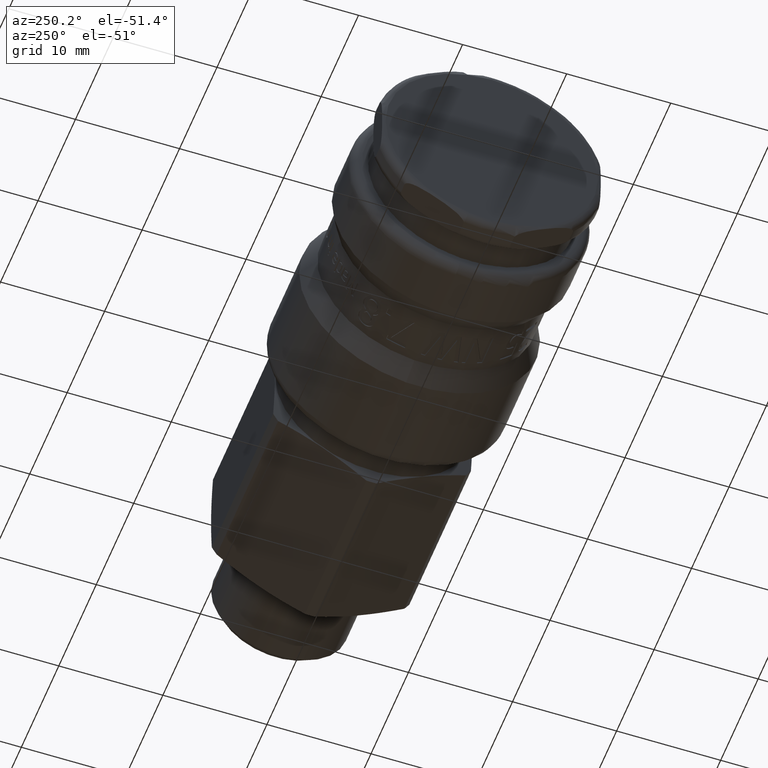
[diagram: clean part render]
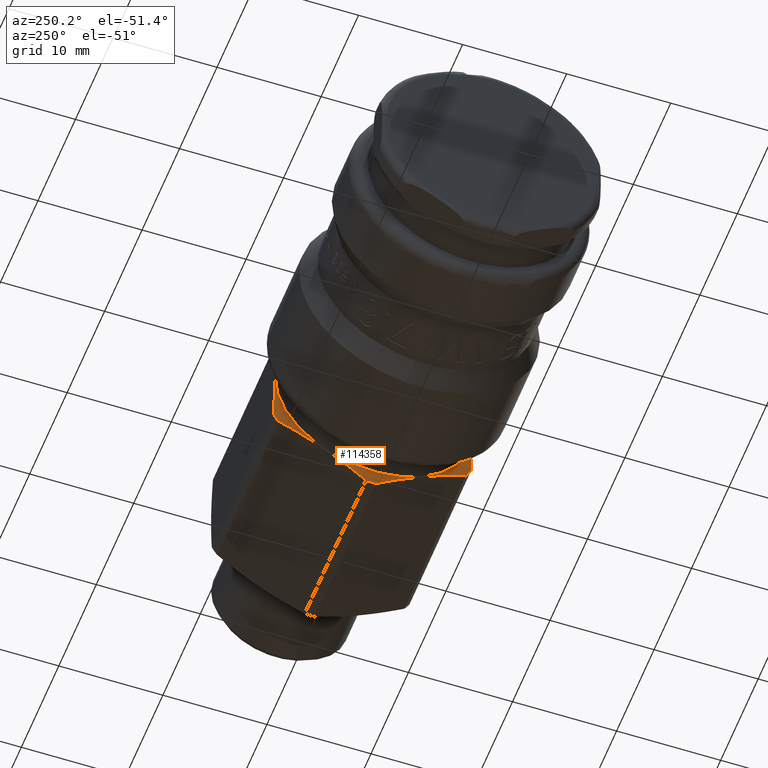
[diagram: same view with one face highlighted and labeled with its STEP entity id]
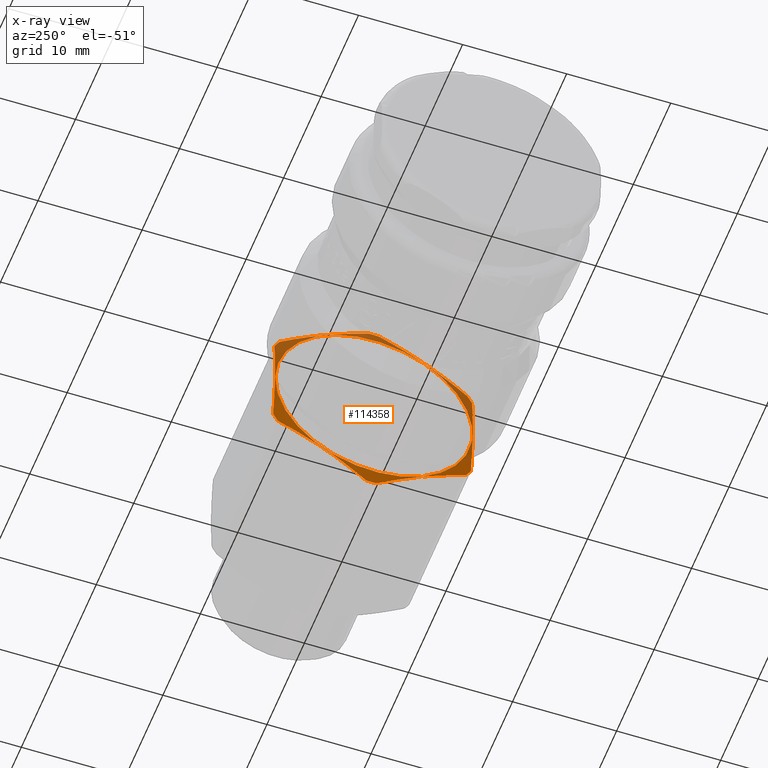
[diagram: x-ray of the same camera — body ghosted, the highlighted face saturated]
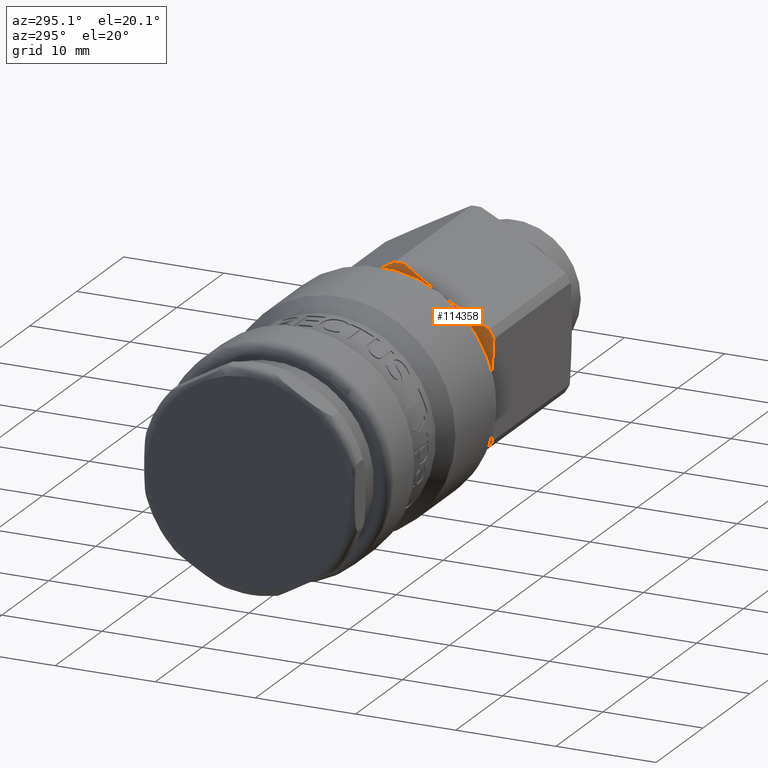
[diagram: same view with one face highlighted and labeled with its STEP entity id]
A machine part, auxiliary view. The second image highlights one B-rep face of the part: STEP entity #114358.
The next image is the same camera in x-ray: the body ghosted, the highlighted face saturated — about 40% of this face is hidden behind the body in this view.
A second angle (auxiliary view) of the same face is appended — the face is thin or edge-on in the first view.
In plain terms, the highlighted conical surface has half-angle 75 deg.
Its self-contained STEP definition (entity closure, byte-faithful):
#113698=CARTESIAN_POINT('',(31.450000000000003,9.474342880840897,0.111588423500987));
#113699=VERTEX_POINT('',#113698);
#113700=CARTESIAN_POINT('',(31.450000000000003,0.0,0.0));
#113701=DIRECTION('',(-1.0,0.0,0.0));
#113702=DIRECTION('',(0.0,0.999930647054448,0.011777142322004));
#113703=AXIS2_PLACEMENT_3D('',#113700,#113701,#113702);
#113704=CIRCLE('',#113703,9.475000000000001);
#113705=EDGE_CURVE('',#113699,#113699,#113704,.T.);
#113717=CARTESIAN_POINT('',(31.778237760728132,0.360279897023494,10.693932784331530));
#113718=VERTEX_POINT('',#113717);
#113725=CARTESIAN_POINT('',(31.778237760728132,-0.612050422196620,10.682480717543509));
#113726=VERTEX_POINT('',#113725);
#113727=CARTESIAN_POINT('',(31.778237760728132,0.0,0.0));
#113728=DIRECTION('',(-1.000000000000000,0.0,0.0));
#113729=DIRECTION('',(0.0,0.999930647054448,0.011777142322004));
#113730=AXIS2_PLACEMENT_3D('',#113727,#113728,#113729);
#113731=CIRCLE('',#113730,10.699999999999999);
#113732=EDGE_CURVE('',#113726,#113718,#113731,.T.);
#113881=CARTESIAN_POINT('',(31.778237760728132,9.557324887928406,-4.811189144752498));
#113882=VERTEX_POINT('',#113881);
#113889=CARTESIAN_POINT('',(31.778237760728132,9.441357406106111,5.034954848870572));
#113890=VERTEX_POINT('',#113889);
#113891=CARTESIAN_POINT('',(31.778237760728132,9.441357406106111,5.034954848870612));
#113892=CARTESIAN_POINT('',(31.171220150958924,9.499341147017258,0.111882852059037));
#113893=CARTESIAN_POINT('',(31.778237760728132,9.557324887928406,-4.811189144752538));
#113901=(BOUNDED_CURVE()B_SPLINE_CURVE(2,(#113891,#113892,#113893),.UNSPECIFIED.,.F.,.U.)B_SPLINE_CURVE_WITH_KNOTS((3,3),(0.0,0.986780367628047),.UNSPECIFIED.)CURVE()GEOMETRIC_REPRESENTATION_ITEM()RATIONAL_B_SPLINE_CURVE((1.0,1.126315789473679,1.0))REPRESENTATION_ITEM(''));
#113902=EDGE_CURVE('',#113890,#113882,#113901,.T.);
#114135=CARTESIAN_POINT('',(31.778237760728132,-9.081077509082613,5.658977935460955));
#114136=VERTEX_POINT('',#114135);
#114143=CARTESIAN_POINT('',(31.778237760728132,-9.557324887928406,4.811189144752496));
#114144=VERTEX_POINT('',#114143);
#114145=CARTESIAN_POINT('',(31.778237760728132,0.0,0.0));
#114146=DIRECTION('',(-1.000000000000000,0.0,0.0));
#114147=DIRECTION('',(0.0,0.999930647054448,0.011777142322004));
#114148=AXIS2_PLACEMENT_3D('',#114145,#114146,#114147);
#114149=CIRCLE('',#114148,10.699999999999999);
#114150=EDGE_CURVE('',#114144,#114136,#114149,.T.);
#114167=CARTESIAN_POINT('',(31.778237760728132,-9.441357406106111,-5.034954848870573));
#114168=VERTEX_POINT('',#114167);
#114175=CARTESIAN_POINT('',(31.778237760728132,-8.945274465731790,-5.871291572791017));
#114176=VERTEX_POINT('',#114175);
#114177=CARTESIAN_POINT('',(31.778237760728132,0.0,0.0));
#114178=DIRECTION('',(-1.000000000000000,0.0,0.0));
#114179=DIRECTION('',(0.0,0.999930647054448,0.011777142322004));
#114180=AXIS2_PLACEMENT_3D('',#114177,#114178,#114179);
#114181=CIRCLE('',#114180,10.699999999999999);
#114182=EDGE_CURVE('',#114176,#114168,#114181,.T.);
#114199=CARTESIAN_POINT('',(31.778237760728132,-0.360279897023499,-10.693932784331530));
#114200=VERTEX_POINT('',#114199);
#114207=CARTESIAN_POINT('',(31.778237760728132,0.612050422196615,-10.682480717543513));
#114208=VERTEX_POINT('',#114207);
#114209=CARTESIAN_POINT('',(31.778237760728132,0.0,0.0));
#114210=DIRECTION('',(-1.000000000000000,0.0,0.0));
#114211=DIRECTION('',(0.0,0.999930647054448,0.011777142322004));
#114212=AXIS2_PLACEMENT_3D('',#114209,#114210,#114211);
#114213=CIRCLE('',#114212,10.699999999999999);
#114214=EDGE_CURVE('',#114208,#114200,#114213,.T.);
#114231=CARTESIAN_POINT('',(31.778237760728132,9.081077509082610,-5.658977935460959));
#114232=VERTEX_POINT('',#114231);
#114239=CARTESIAN_POINT('',(31.778237760728132,0.0,0.0));
#114240=DIRECTION('',(-1.000000000000000,0.0,0.0));
#114241=DIRECTION('',(0.0,0.999930647054448,0.011777142322004));
#114242=AXIS2_PLACEMENT_3D('',#114239,#114240,#114241);
#114243=CIRCLE('',#114242,10.699999999999999);
#114244=EDGE_CURVE('',#113882,#114232,#114243,.T.);
#114256=CARTESIAN_POINT('',(31.778237760728132,8.945274465731787,5.871291572791026));
#114257=VERTEX_POINT('',#114256);
#114266=CARTESIAN_POINT('',(31.778237760728132,0.0,0.0));
#114267=DIRECTION('',(-1.000000000000000,0.0,0.0));
#114268=DIRECTION('',(0.0,0.999930647054448,0.011777142322004));
#114269=AXIS2_PLACEMENT_3D('',#114266,#114267,#114268);
#114270=CIRCLE('',#114269,10.699999999999999);
#114271=EDGE_CURVE('',#114257,#113890,#114270,.T.);
#114276=CARTESIAN_POINT('',(31.614118880364067,0.0,0.0));
#114277=DIRECTION('',(1.0,0.0,0.0));
#114278=DIRECTION('',(0.0,0.999930647054448,0.011777142322004));
#114279=AXIS2_PLACEMENT_3D('',#114276,#114277,#114278);
#114280=CONICAL_SURFACE('',#114279,10.087500000000000,74.999999999999915);
#114281=ORIENTED_EDGE('',*,*,#113705,.F.);
#114282=EDGE_LOOP('',(#114281));
#114283=FACE_OUTER_BOUND('',#114282,.T.);
#114284=CARTESIAN_POINT('',(31.778237760728132,0.360279897023457,10.693932784331553));
#114285=CARTESIAN_POINT('',(31.171220150958924,4.652777181377640,8.282612178561278));
#114286=CARTESIAN_POINT('',(31.778237760728132,8.945274465731822,5.871291572791004));
#114294=(BOUNDED_CURVE()B_SPLINE_CURVE(2,(#114284,#114285,#114286),.UNSPECIFIED.,.F.,.U.)B_SPLINE_CURVE_WITH_KNOTS((3,3),(0.0,0.986780367628048),.UNSPECIFIED.)CURVE()GEOMETRIC_REPRESENTATION_ITEM()RATIONAL_B_SPLINE_CURVE((1.0,1.126315789473679,1.0))REPRESENTATION_ITEM(''));
#114295=EDGE_CURVE('',#113718,#114257,#114294,.T.);
#114296=ORIENTED_EDGE('',*,*,#114295,.T.);
#114297=ORIENTED_EDGE('',*,*,#114271,.T.);
#114298=ORIENTED_EDGE('',*,*,#113902,.T.);
#114299=ORIENTED_EDGE('',*,*,#114244,.T.);
#114300=CARTESIAN_POINT('',(31.778237760728132,9.081077509082647,-5.658977935460936));
#114301=CARTESIAN_POINT('',(31.171220150958924,4.846563965639612,-8.170729326502235));
#114302=CARTESIAN_POINT('',(31.778237760728132,0.612050422196578,-10.682480717543532));
#114310=(BOUNDED_CURVE()B_SPLINE_CURVE(2,(#114300,#114301,#114302),.UNSPECIFIED.,.F.,.U.)B_SPLINE_CURVE_WITH_KNOTS((3,3),(0.0,0.986780367628048),.UNSPECIFIED.)CURVE()GEOMETRIC_REPRESENTATION_ITEM()RATIONAL_B_SPLINE_CURVE((1.0,1.126315789473679,1.0))REPRESENTATION_ITEM(''));
#114311=EDGE_CURVE('',#114232,#114208,#114310,.T.);
#114312=ORIENTED_EDGE('',*,*,#114311,.T.);
#114313=ORIENTED_EDGE('',*,*,#114214,.T.);
#114314=CARTESIAN_POINT('',(31.778237760728132,-0.360279897023464,-10.693932784331551));
#114315=CARTESIAN_POINT('',(31.171220150958924,-4.652777181377646,-8.282612178561275));
#114316=CARTESIAN_POINT('',(31.778237760728132,-8.945274465731826,-5.871291572790996));
#114324=(BOUNDED_CURVE()B_SPLINE_CURVE(2,(#114314,#114315,#114316),.UNSPECIFIED.,.F.,.U.)B_SPLINE_CURVE_WITH_KNOTS((3,3),(0.0,0.986780367628048),.UNSPECIFIED.)CURVE()GEOMETRIC_REPRESENTATION_ITEM()RATIONAL_B_SPLINE_CURVE((1.0,1.126315789473679,1.0))REPRESENTATION_ITEM(''));
#114325=EDGE_CURVE('',#114200,#114176,#114324,.T.);
#114326=ORIENTED_EDGE('',*,*,#114325,.T.);
#114327=ORIENTED_EDGE('',*,*,#114182,.T.);
#114328=CARTESIAN_POINT('',(31.778237760728132,-9.441357406106109,-5.034954848870614));
#114329=CARTESIAN_POINT('',(31.171220150958924,-9.499341147017258,-0.111882852059039));
#114330=CARTESIAN_POINT('',(31.778237760728132,-9.557324887928408,4.811189144752536));
#114338=(BOUNDED_CURVE()B_SPLINE_CURVE(2,(#114328,#114329,#114330),.UNSPECIFIED.,.F.,.U.)B_SPLINE_CURVE_WITH_KNOTS((3,3),(0.0,0.986780367628047),.UNSPECIFIED.)CURVE()GEOMETRIC_REPRESENTATION_ITEM()RATIONAL_B_SPLINE_CURVE((1.0,1.126315789473679,1.0))REPRESENTATION_ITEM(''));
#114339=EDGE_CURVE('',#114168,#114144,#114338,.T.);
#114340=ORIENTED_EDGE('',*,*,#114339,.T.);
#114341=ORIENTED_EDGE('',*,*,#114150,.T.);
#114342=CARTESIAN_POINT('',(31.778237760728132,-9.081077509082649,5.658977935460933));
#114343=CARTESIAN_POINT('',(31.171220150958924,-4.846563965639614,8.170729326502231));
#114344=CARTESIAN_POINT('',(31.778237760728132,-0.612050422196582,10.682480717543532));
#114352=(BOUNDED_CURVE()B_SPLINE_CURVE(2,(#114342,#114343,#114344),.UNSPECIFIED.,.F.,.U.)B_SPLINE_CURVE_WITH_KNOTS((3,3),(0.0,0.986780367628048),.UNSPECIFIED.)CURVE()GEOMETRIC_REPRESENTATION_ITEM()RATIONAL_B_SPLINE_CURVE((1.0,1.126315789473679,1.0))REPRESENTATION_ITEM(''));
#114353=EDGE_CURVE('',#114136,#113726,#114352,.T.);
#114354=ORIENTED_EDGE('',*,*,#114353,.T.);
#114355=ORIENTED_EDGE('',*,*,#113732,.T.);
#114356=EDGE_LOOP('',(#114296,#114297,#114298,#114299,#114312,#114313,#114326,#114327,#114340,#114341,#114354,#114355));
#114357=FACE_BOUND('',#114356,.T.);
#114358=ADVANCED_FACE('',(#114283,#114357),#114280,.T.);